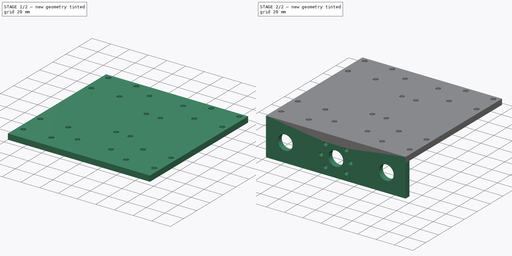
[diagram: build sequence overview — one tinted view per stage of 2, left to right]
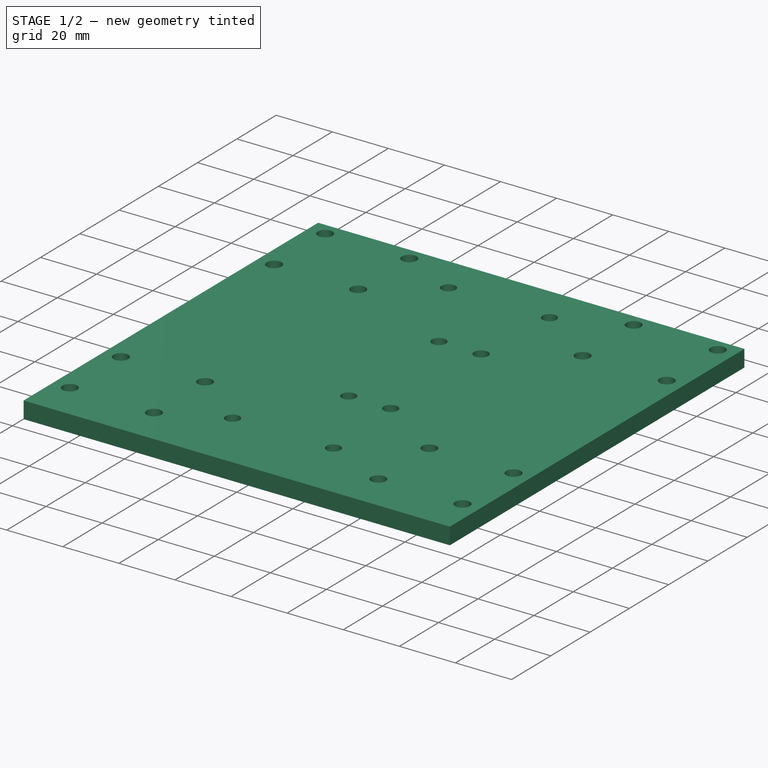
[diagram: stage 1 of 2 — iso view after this stage's code; geometry added in this stage tinted green]
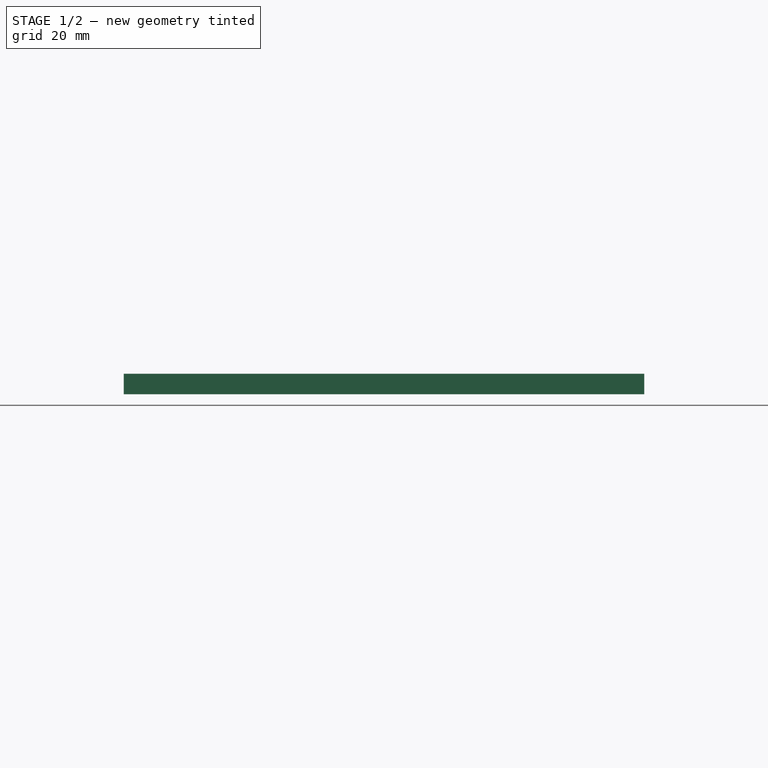
[diagram: stage 1 of 2 — front view after this stage's code; geometry added in this stage tinted green]
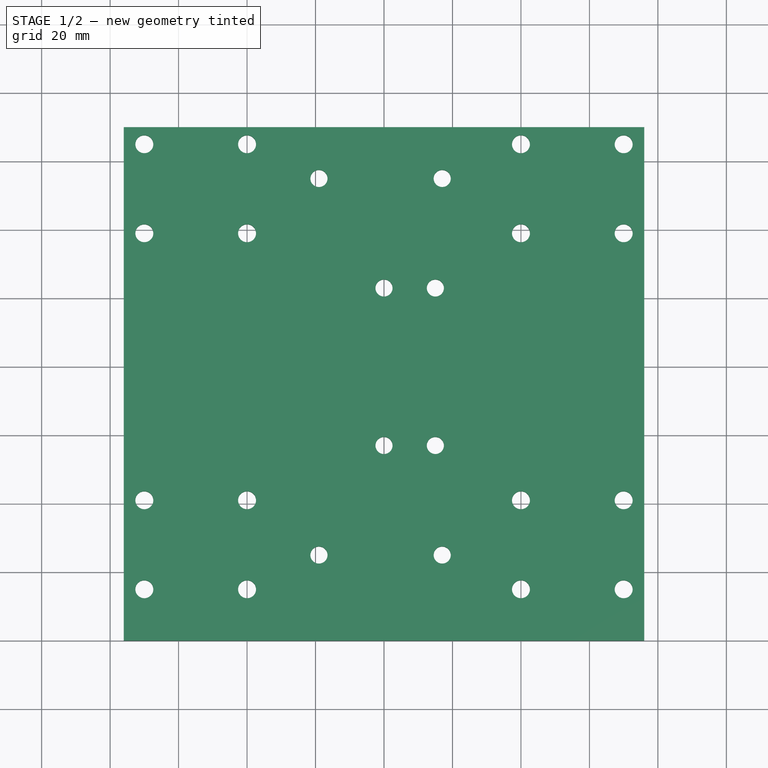
[diagram: stage 1 of 2 — top view after this stage's code; geometry added in this stage tinted green]
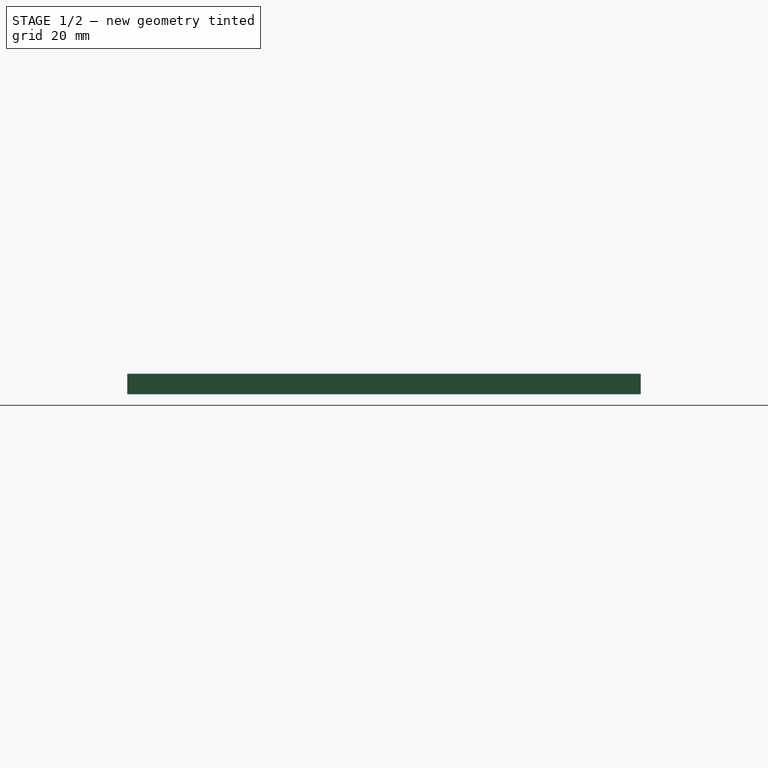
[diagram: stage 1 of 2 — right view after this stage's code; geometry added in this stage tinted green]
FCSTD DOCUMENT  (FreeCAD 0.15R4671 (Git))
Label: platform-x
License: All rights reserved
LicenseURL: http://en.wikipedia.org/wiki/All_rights_reserved
objects: Drawing::FeatureView×37, Drawing::FeatureViewPart×4, Sketcher::SketchObject×2, PartDesign::Pad×2, Drawing::FeaturePage×1
note: 6 computed .brp shape members not serialized (recipe doc carries the construction recipe); baked Part::Feature solids carry a one-line shape summary decoded from their .brp

FEATURE [Sketcher::SketchObject] Sketch  label="top-sketch"
  sketch-geometry (48):
    g0: LineSegment StartX=-76 StartY=70 StartZ=0 EndX=76 EndY=70 EndZ=0
    g1: LineSegment StartX=76 StartY=70 StartZ=0 EndX=76 EndY=-80 EndZ=0
    g2: LineSegment StartX=76 StartY=-80 StartZ=0 EndX=-76 EndY=-80 EndZ=0
    g3: LineSegment StartX=-76 StartY=-80 StartZ=0 EndX=-76 EndY=70 EndZ=0
    g4: LineSegment [constr] StartX=-70 StartY=65 StartZ=0 EndX=70 EndY=65 EndZ=0
    g5: LineSegment [constr] StartX=70 StartY=65 StartZ=0 EndX=70 EndY=-65 EndZ=0
    g6: LineSegment [constr] StartX=70 StartY=-65 StartZ=0 EndX=-70 EndY=-65 EndZ=0
    g7: LineSegment [constr] StartX=-70 StartY=-65 StartZ=0 EndX=-70 EndY=65 EndZ=0
    g8: LineSegment [constr] StartX=-40 StartY=65 StartZ=0 EndX=-40 EndY=-65 EndZ=0
    g9: LineSegment [constr] StartX=40 StartY=65 StartZ=0 EndX=40 EndY=-65 EndZ=0
    g10: LineSegment [constr] StartX=-70 StartY=-39 StartZ=0 EndX=-40 EndY=-39 EndZ=0
    g11: LineSegment [constr] StartX=40 StartY=-39 StartZ=0 EndX=70 EndY=-39 EndZ=0
    g12: LineSegment [constr] StartX=-70 StartY=39 StartZ=0 EndX=-40 EndY=39 EndZ=0
    g13: LineSegment [constr] StartX=0 StartY=23 StartZ=0 EndX=15 EndY=23 EndZ=0
    g14: LineSegment [constr] StartX=15 StartY=23 StartZ=0 EndX=15 EndY=-23 EndZ=0
    g15: LineSegment [constr] StartX=15 StartY=-23 StartZ=0 EndX=0 EndY=-23 EndZ=0
    g16: LineSegment [constr] StartX=0 StartY=-23 StartZ=0 EndX=0 EndY=23 EndZ=0
    g17: GeomPoint [constr] X=0 Y=65 Z=0
    g18: GeomPoint [constr] X=0 Y=-65 Z=0
    g19: LineSegment [constr] StartX=-19 StartY=55 StartZ=0 EndX=17 EndY=55 EndZ=0
    g20: LineSegment [constr] StartX=17 StartY=55 StartZ=0 EndX=17 EndY=-55 EndZ=0
    g21: LineSegment [constr] StartX=17 StartY=-55 StartZ=0 EndX=-19 EndY=-55 EndZ=0
    g22: LineSegment [constr] StartX=-19 StartY=-55 StartZ=0 EndX=-19 EndY=55 EndZ=0
    g23: Circle CenterX=-19 CenterY=55 CenterZ=0 NormalX=0 NormalY=0 NormalZ=1 Radius=2.5
    g24: Circle CenterX=17 CenterY=55 CenterZ=0 NormalX=0 NormalY=0 NormalZ=1 Radius=2.5
    g25: Circle CenterX=-19 CenterY=-55 CenterZ=0 NormalX=0 NormalY=0 NormalZ=1 Radius=2.5
    g26: Circle CenterX=17 CenterY=-55 CenterZ=0 NormalX=0 NormalY=0 NormalZ=1 Radius=2.5
    g27: Circle CenterX=-70 CenterY=65 CenterZ=0 NormalX=0 NormalY=0 NormalZ=1 Radius=2.625
    g28: Circle CenterX=-40 CenterY=65 CenterZ=0 NormalX=0 NormalY=0 NormalZ=1 Radius=2.625
    g29: Circle CenterX=-70 CenterY=39 CenterZ=0 NormalX=0 NormalY=0 NormalZ=1 Radius=2.625
    g30: Circle CenterX=-40 CenterY=39 CenterZ=0 NormalX=0 NormalY=0 NormalZ=1 Radius=2.625
    g31: Circle CenterX=-70 CenterY=-39 CenterZ=0 NormalX=0 NormalY=0 NormalZ=1 Radius=2.625
    g32: Circle CenterX=-40 CenterY=-39 CenterZ=0 NormalX=0 NormalY=0 NormalZ=1 Radius=2.625
    g33: Circle CenterX=-70 CenterY=-65 CenterZ=0 NormalX=0 NormalY=0 NormalZ=1 Radius=2.625
    g34: Circle CenterX=-40 CenterY=-65 CenterZ=0 NormalX=0 NormalY=0 NormalZ=1 Radius=2.625
    g35: Circle CenterX=40 CenterY=65 CenterZ=0 NormalX=0 NormalY=0 NormalZ=1 Radius=2.625
    g36: Circle CenterX=70 CenterY=65 CenterZ=0 NormalX=0 NormalY=0 NormalZ=1 Radius=2.625
    g37: Circle CenterX=40 CenterY=39 CenterZ=0 NormalX=0 NormalY=0 NormalZ=1 Radius=2.625
    g38: Circle CenterX=40 CenterY=-39 CenterZ=0 NormalX=0 NormalY=0 NormalZ=1 Radius=2.625
    g39: Circle CenterX=40 CenterY=-65 CenterZ=0 NormalX=0 NormalY=0 NormalZ=1 Radius=2.625
    g40: Circle CenterX=70 CenterY=-39 CenterZ=0 NormalX=0 NormalY=0 NormalZ=1 Radius=2.625
    g41: Circle CenterX=70 CenterY=-65 CenterZ=0 NormalX=0 NormalY=0 NormalZ=1 Radius=2.625
    g42: Circle CenterX=0 CenterY=23 CenterZ=0 NormalX=0 NormalY=0 NormalZ=1 Radius=2.5
    g43: Circle CenterX=15 CenterY=23 CenterZ=0 NormalX=0 NormalY=0 NormalZ=1 Radius=2.5
    g44: Circle CenterX=0 CenterY=-23 CenterZ=0 NormalX=0 NormalY=0 NormalZ=1 Radius=2.5
    g45: Circle CenterX=15 CenterY=-23 CenterZ=0 NormalX=0 NormalY=0 NormalZ=1 Radius=2.5
    g46: LineSegment [constr] StartX=40 StartY=39 StartZ=0 EndX=70 EndY=39 EndZ=0
    g47: Circle CenterX=70 CenterY=39 CenterZ=0 NormalX=0 NormalY=0 NormalZ=1 Radius=2.625
  constraints (121):
    c: Coincident(g0,g1)
    c: Coincident(g1,g2)
    c: Coincident(g2,g3)
    c: Coincident(g3,g0)
    c: Horizontal(g0)
    c: Horizontal(g2)
    c: Vertical(g1)
    c: Vertical(g3)
    c: Symmetric(g0,g0,g-2)
    c: DistanceX(g2,g1) = 152
    c: Coincident(g4,g5)
    c: Coincident(g5,g6)
    c: Coincident(g6,g7)
    c: Coincident(g7,g4)
    c: Horizontal(g4)
    c: Horizontal(g6)
    c: Vertical(g5)
    c: Vertical(g7)
    c: Symmetric(g4,g4,g-2)
    c: DistanceY(g0,g4) = -5
    c: DistanceX(g4,g0) = -6
    c: PointOnObject(g8,g4)
    c: PointOnObject(g8,g6)
    c: Vertical(g8)
    c: DistanceX(g6,g8) = 30
    c: PointOnObject(g9,g4)
    c: PointOnObject(g9,g6)
    c: Vertical(g9)
    c: DistanceX(g9,g5) = 30
    c: DistanceY(g6,g2) = -15
    c: PointOnObject(g10,g7)
    c: PointOnObject(g10,g8)
    c: Horizontal(g10)
    c: PointOnObject(g11,g9)
    c: PointOnObject(g11,g5)
    c: Horizontal(g11)
    c: PointOnObject(g11,g10)
    c: PointOnObject(g12,g7)
    c: PointOnObject(g12,g8)
    c: Horizontal(g12)
    c: PointOnObject(g37,g9)
    c: PointOnObject(g37,g12)
    c: DistanceY(g4,g12) = -26
    c: DistanceY(g10,g6) = -26
    c: Coincident(g13,g14)
    c: Coincident(g14,g15)
    c: Coincident(g15,g16)
    c: Coincident(g16,g13)
    c: Horizontal(g13)
    c: Horizontal(g15)
    c: Vertical(g14)
    c: Vertical(g16)
    c: PointOnObject(g13,g-2)
    c: Symmetric(g15,g13,g-1)
    c: DistanceX(g15,g14) = 15
    c: DistanceY(g13,g15) = -46
    c: PointOnObject(g17,g4)
    c: PointOnObject(g17,g-2)
    c: PointOnObject(g18,g6)
    c: PointOnObject(g18,g-2)
    c: Symmetric(g18,g17,g-1)
    c: Coincident(g19,g20)
    c: Coincident(g20,g21)
    c: Coincident(g21,g22)
    c: Coincident(g22,g19)
    c: Horizontal(g19)
    c: Horizontal(g21)
    c: Vertical(g20)
    c: Vertical(g22)
    c: Symmetric(g21,g19,g-1)
    c: DistanceX(g21,g20) = 36
    c: DistanceY(g19,g20) = -110
    c: Coincident(g23,g19)
    c: Coincident(g24,g19)
    c: Coincident(g25,g21)
    c: Coincident(g26,g20)
    c: Radius(g26) = 2.5
    c: Equal(g26,g25)
    c: Equal(g26,g23)
    c: Equal(g26,g24)
    c: Distance(g19,g0) = 15
    c: Coincident(g27,g4)
    c: Coincident(g28,g8)
    c: Coincident(g29,g12)
    c: Coincident(g30,g12)
    c: Coincident(g31,g10)
    c: Coincident(g32,g10)
    c: Coincident(g33,g6)
    c: Coincident(g34,g8)
    c: Coincident(g35,g9)
    c: Coincident(g36,g4)
    c: Coincident(g38,g11)
    c: Coincident(g39,g9)
    c: Coincident(g40,g11)
    c: Coincident(g41,g5)
    c: Radius(g27) = 2.625
    c: Equal(g27,g29)
    c: Equal(g27,g30)
    c: Equal(g27,g28)
    c: Equal(g27,g35)
    c: Equal(g27,g36)
    c: Equal(g27,g37)
    c: Equal(g27, g31-g34) x4
    c: Equal(g27,g38)
    c: Equal(g27,g40)
    c: Equal(g27,g39)
    c: Equal(g27,g41)
    c: Coincident(g42,g13)
    c: Coincident(g43,g13)
    c: Coincident(g44,g15)
    c: Coincident(g45,g14)
    c: Radius(g42) = 2.5
    c: Equal(g42,g43)
    c: Equal(g43,g45)
    c: Equal(g44,g45)
    c: Coincident(g46,g37)
    c: PointOnObject(g46,g5)
    c: Horizontal(g46)
    c: Coincident(g47,g46)
    c: Equal(g47,g37)
    c: DistanceX(g-1,g19) = -19
FEATURE [PartDesign::Pad] Pad  label="top"
  Length = 6
  Length2 = 100
  Sketch = -> Sketch
  Type = 0
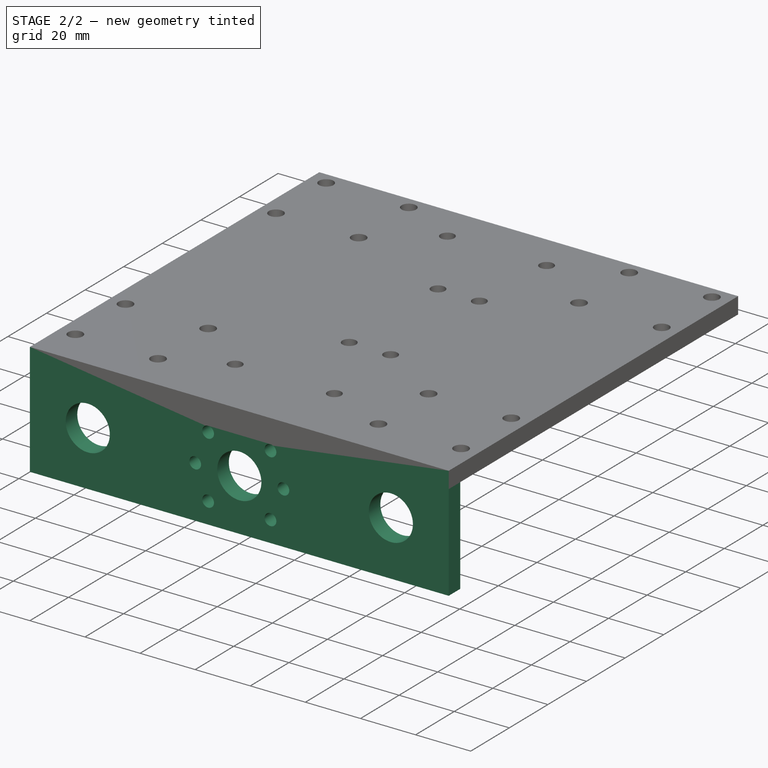
[diagram: stage 2 of 2 — iso view after this stage's code; geometry added in this stage tinted green]
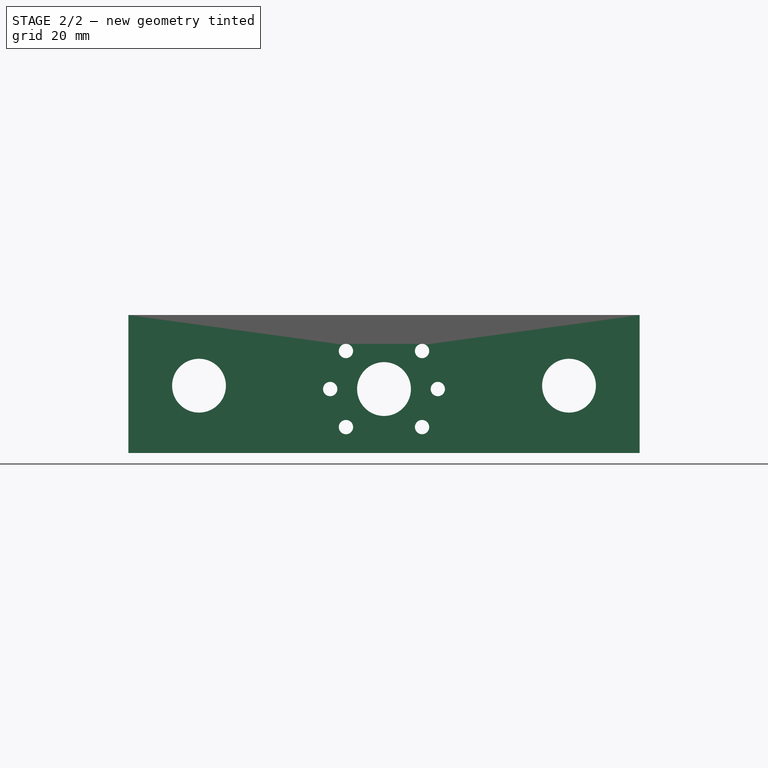
[diagram: stage 2 of 2 — front view after this stage's code; geometry added in this stage tinted green]
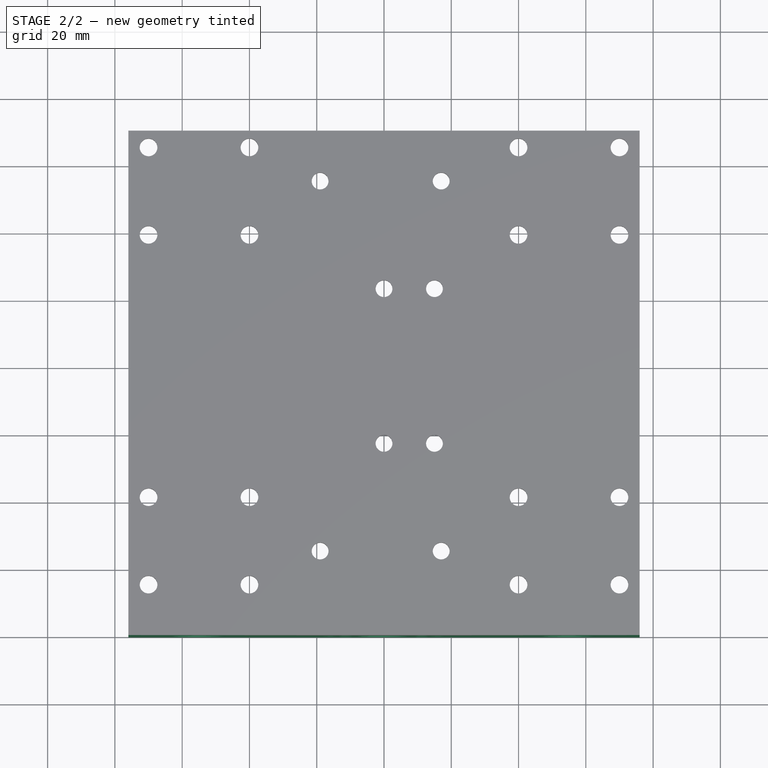
[diagram: stage 2 of 2 — top view after this stage's code; geometry added in this stage tinted green]
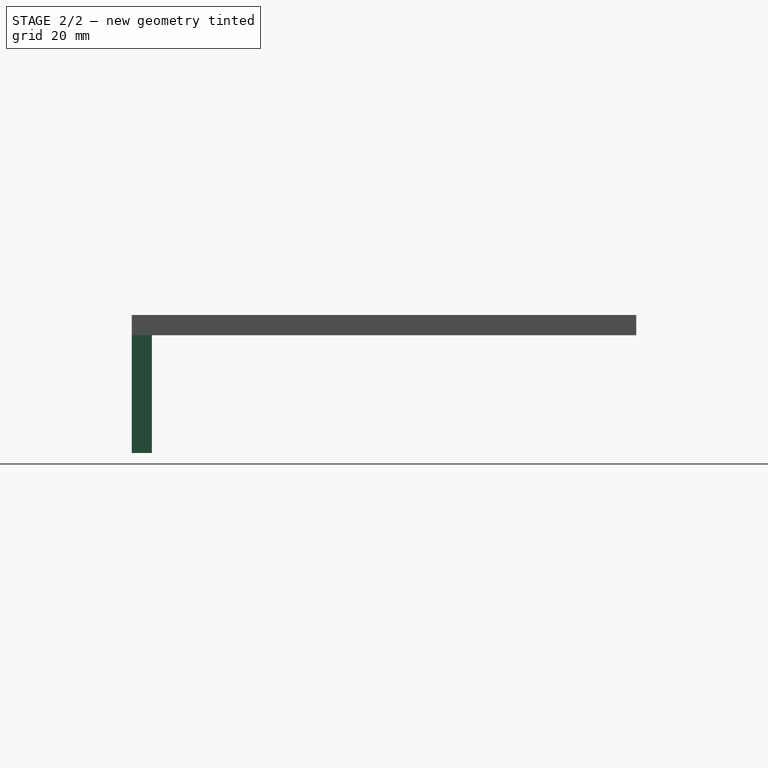
[diagram: stage 2 of 2 — right view after this stage's code; geometry added in this stage tinted green]
FEATURE [Sketcher::SketchObject] Sketch001  label="front-sketch"
  ExternalGeometry = -> [Pad]
  Placement = pos=(0,-80,0) rot=(1,0,0;1.5708rad)
  Support = -> Pad [Face3]
  sketch-geometry (18):
    g0: LineSegment StartX=-76 StartY=6 StartZ=0 EndX=76 EndY=6 EndZ=0
    g1: LineSegment StartX=76 StartY=6 StartZ=0 EndX=76 EndY=-35 EndZ=0
    g2: LineSegment StartX=76 StartY=-35 StartZ=0 EndX=-76 EndY=-35 EndZ=0
    g3: LineSegment StartX=-76 StartY=-35 StartZ=0 EndX=-76 EndY=6 EndZ=0
    g4: Circle CenterX=0 CenterY=-16 CenterZ=0 NormalX=0 NormalY=0 NormalZ=1 Radius=8
    g5: Circle [constr] CenterX=0 CenterY=-16 CenterZ=0 NormalX=0 NormalY=0 NormalZ=1 Radius=16
    g6: LineSegment [constr] StartX=-11.3137 StartY=-4.68629 StartZ=0 EndX=11.3137 EndY=-27.3137 EndZ=0
    g7: LineSegment [constr] StartX=11.3137 StartY=-4.68629 StartZ=0 EndX=-11.3137 EndY=-27.3137 EndZ=0
    g8: LineSegment [constr] StartX=-16 StartY=-16 StartZ=0 EndX=16 EndY=-16 EndZ=0
    g9: Circle CenterX=-11.3137 CenterY=-4.68629 CenterZ=0 NormalX=0 NormalY=0 NormalZ=1 Radius=2.125
    g10: Circle CenterX=-16 CenterY=-16 CenterZ=0 NormalX=0 NormalY=0 NormalZ=1 Radius=2.125
    g11: Circle CenterX=11.3137 CenterY=-4.68629 CenterZ=0 NormalX=0 NormalY=0 NormalZ=1 Radius=2.125
    g12: Circle CenterX=-11.3137 CenterY=-27.3137 CenterZ=0 NormalX=0 NormalY=0 NormalZ=1 Radius=2.125
    g13: Circle CenterX=11.3137 CenterY=-27.3137 CenterZ=0 NormalX=0 NormalY=0 NormalZ=1 Radius=2.125
    g14: LineSegment [constr] StartX=-76 StartY=-15 StartZ=0 EndX=76 EndY=-15 EndZ=0
    g15: Circle CenterX=16 CenterY=-16 CenterZ=0 NormalX=0 NormalY=0 NormalZ=1 Radius=2.125
    g16: Circle CenterX=-55 CenterY=-15 CenterZ=0 NormalX=0 NormalY=0 NormalZ=1 Radius=8
    g17: Circle CenterX=55 CenterY=-15 CenterZ=0 NormalX=0 NormalY=0 NormalZ=1 Radius=8
  constraints (50):
    c: Coincident(g0,g1)
    c: Coincident(g1,g2)
    c: Coincident(g2,g3)
    c: Coincident(g3,g0)
    c: Horizontal(g0)
    c: Horizontal(g2)
    c: Vertical(g1)
    c: Vertical(g3)
    c: Coincident(g0,g-3)
    c: Coincident(g0,g-3)
    c: PointOnObject(g4,g-2)
    c: Radius(g4) = 8
    c: Coincident(g5,g4)
    c: Radius(g5) = 16
    c: PointOnObject(g6,g5)
    c: PointOnObject(g6,g5)
    c: PointOnObject(g7,g5)
    c: PointOnObject(g7,g5)
    c: PointOnObject(g4,g7)
    c: PointOnObject(g4,g6)
    c: PointOnObject(g8,g5)
    c: PointOnObject(g8,g5)
    c: Horizontal(g8)
    c: PointOnObject(g4,g8)
    c: Angle(g6,g8) = 0.785398
    c: Angle(g8,g7) = 0.785398
    c: Coincident(g9,g6)
    c: Coincident(g10,g8)
    c: Coincident(g11,g7)
    c: Coincident(g12,g7)
    c: Coincident(g13,g6)
    c: PointOnObject(g14,g3)
    c: PointOnObject(g14,g1)
    c: Horizontal(g14)
    c: Coincident(g15,g8)
    c: Radius(g11) = 2.125
    c: Equal(g11,g13)
    c: Equal(g11,g15)
    c: Equal(g11,g12)
    c: Equal(g11,g10)
    c: Equal(g11,g9)
    c: DistanceY(g-1,g4) = -16
    c: DistanceY(g-1,g14) = -15
    c: PointOnObject(g16,g14)
    c: PointOnObject(g17,g14)
    c: Symmetric(g17,g16,g-2)
    c: DistanceX(g17,g16) = -110
    c: Radius(g16) = 8
    c: Equal(g16,g17)
    c: DistanceY(g-1,g1) = -35
FEATURE [PartDesign::Pad] Pad001  label="fron"
  Length = 6
  Length2 = 100
  Reversed = true
  Sketch = -> Sketch001
  Type = 0
FEATURE [Drawing::FeatureViewPart] Ortho  label="Ortho_0_0"
  Direction = (0,-1,0)
  HiddenWidth = 0.15
  LineWidth = 0.35
  Rotation = 90
  Scale = 0.75
  ShowHiddenLines = false
  ShowSmoothLines = false
  Tolerance = 0.05
  ViewResult = <g id="Ortho_0_0"\n   transform="rotate(90,80.5,161.5) translate(80.5,161.5) scale(0.75,0.75)"\n  >\n<g   stroke="rgb(0, 0, 0)"\n   stroke-width="0.466667"\n   stroke-linecap="butt"\n   stroke-linejoin="miter"\n   fill="none"\n   transform="scale(1,-1)"\n  >\n<path id= "1" d=" M 0 76 L 35 76 " />\n<path id= "2" d=" M 0 76 L -6 76 " />\n<path id= "3" d=" M 35 -76 L 0 -76 " />\n<path id= "4" d=" M 0 -76 L -6 -76 " />\n<path id= "5" d=" M -6 -76 L -6 76 " />\n<path id= "6" d=" M 35 76 L 35 -76 " />\n<circle cx ="16" cy ="0" r ="8" /><circle cx ="15" cy ="55" r ="8" /><circle cx ="15" cy ="-55" r ="8" /><circle cx ="16" cy ="16" r ="2.125" /><circle cx ="16" cy ="-16" r ="2.125" /><circle cx ="27.3137" cy ="-11.3137" r ="2.125" /><circle cx ="27.3137" cy ="11.3137" r ="2.125" /><circle cx ="4.68629" cy ="-11.3137" r ="2.125" /><circle cx ="4.68629" cy ="11.3137" r ="2.125" /></g>\n</g>
  Visible = true
  X = 80.5
  Y = 161.5
FEATURE [Drawing::FeatureViewPart] Ortho001  label="Ortho_0_1"
  Direction = (0,0,1)
  HiddenWidth = 0.15
  LineWidth = 0.35
  Rotation = 0
  Scale = 0.75
  ShowHiddenLines = false
  ShowSmoothLines = false
  Tolerance = 0.05
  ViewResult = <g id="Ortho_0_1"\n   transform="rotate(0,80.5,74.75) translate(80.5,74.75) scale(0.75,0.75)"\n  >\n<g   stroke="rgb(0, 0, 0)"\n   stroke-width="0.466667"\n   stroke-linecap="butt"\n   stroke-linejoin="miter"\n   fill="none"\n   transform="scale(1,-1)"\n  >\n<path d="M76,-72.75 L76,-72.89  L76,-73.0282  L76,-73.1628  L76,-73.2924  L76,-73.415  L76,-73.5294  L76,-73.6339  L76,-73.7273  L76,-73.8084  L76,-73.8762  L76,-73.9299  L76,-73.9687  L76,-73.9921  L76,-74 " /><path id= "2" d=" M 76 70 L 76 -74 " />\n<path id= "3" d=" M 76 -80 L 76 -74 " />\n<path id= "4" d=" M -76 70 L 76 70 " />\n<path id= "5" d=" M -76 -74 L -76 70 " />\n<path id= "6" d=" M -76 -80 L -76 -74 " />\n<circle cx ="-40" cy ="-65" r ="2.625" /><circle cx ="-40" cy ="-39" r ="2.625" /><circle cx ="-70" cy ="-39" r ="2.625" /><circle cx ="-70" cy ="-65" r ="2.625" /><circle cx ="-70" cy ="65" r ="2.625" /><circle cx ="-40" cy ="65" r ="2.625" /><circle cx ="-70" cy ="39" r ="2.625" /><circle cx ="-40" cy ="39" r ="2.625" /><circle cx ="-19" cy ="-55" r ="2.5" /><circle cx ="-19" cy ="55" r ="2.5" /><circle cx ="0" cy ="23" r ="2.5" /><circle cx ="0" cy ="-23" r ="2.5" /><circle cx ="70" cy ="-39" r ="2.625" /><circle cx ="40" cy ="-39" r ="2.625" /><circle cx ="40" cy ="65" r ="2.625" /><circle cx ="40" cy ="39" r ="2.625" /><circle cx ="70" cy ="65" r ="2.625" /><circle cx ="70" cy ="39" r ="2.625" /><circle cx ="70" cy ="-65" r ="2.625" /><circle cx ="40" cy ="-65" r ="2.625" /><circle cx ="17" cy ="55" r ="2.5" /><circle cx ="15" cy ="23" r ="2.5" /><circle cx ="17" cy ="-55" r ="2.5" /><circle cx ="15" cy ="-23" r ="2.5" /><path id= "31" d=" M -76 -80 L 76 -80 " />\n</g>\n</g>
  Visible = true
  X = 80.5
  Y = 74.75
FEATURE [Drawing::FeatureViewPart] Ortho002  label="Ortho_1_1"
  Direction = (0.57735,-0.57735,0.57735)
  HiddenWidth = 0.15
  LineWidth = 0.35
  Rotation = 60
  Scale = 0.5
  ShowHiddenLines = false
  ShowSmoothLines = false
  Tolerance = 0.05
  ViewResult = <blob: 8287 chars omitted>
  Visible = true
  X = 219.018
  Y = 71.5598
FEATURE [Drawing::FeatureViewPart] Ortho003  label="Ortho_1_0"
  Direction = (1,0,0)
  HiddenWidth = 0.15
  LineWidth = 0.35
  Rotation = -90
  Scale = 0.75
  ShowHiddenLines = false
  ShowSmoothLines = false
  Tolerance = 0.05
  ViewResult = <g id="Ortho_1_0"\n   transform="rotate(-90,221,161.5) translate(221,161.5) scale(0.75,0.75)"\n  >\n<g   stroke="rgb(0, 0, 0)"\n   stroke-width="0.466667"\n   stroke-linecap="butt"\n   stroke-linejoin="miter"\n   fill="none"\n   transform="scale(1,-1)"\n  >\n<path id= "1" d=" M 0 -70 L 0 72.75 " />\n<path d="M-2.22045e-16 72.75 A1.25 1.25 0 0 1 -1.25 74" /><path id= "3" d=" M 0 -70 L 6 -70 " />\n<path id= "4" d=" M -1.25 74 L -35 74 " />\n<path id= "5" d=" M 6 -70 L 6 74 " />\n<path id= "6" d=" M -35 80 L -35 74 " />\n<path id= "7" d=" M 6 80 L 6 74 " />\n<path id= "8" d=" M 0 80 L -35 80 " />\n<path id= "9" d=" M 0 80 L 6 80 " />\n</g>\n</g>
  Visible = true
  X = 221
  Y = 161.5
FEATURE [Drawing::FeatureView] dim001
  Rotation = 0
  ViewResult = <g>  <circle cx ="166.437500" cy ="162.437500" r="0.250000" stroke="none" fill="rgb(0,0,255)" /> \n<line x1="172.171812" y1="171.591131" x2="166.437500" y2="162.437500" style="stroke:rgb(0,0,255);stroke-width:0.50" />\n<polygon points="166.935203,163.231979 167.680409,166.305197 169.058738,166.621759 169.375299,165.243430" style="fill:rgb(0,0,255);stroke:rgb(0,0,255);stroke-width:0" />\n<line x1="172.171812" y1="171.591131" x2="189.882571" y2="171.591131" style="stroke:rgb(0,0,255);stroke-width:0.50" />\n<text x="181.027191" y="169.591131" font-family="inherit" font-size="3.6" fill="rgb(0,0,255)" text-anchor="middle"  >Rmax 1.25</text> </g>
  Visible = true
  X = 0
  Y = 0
FEATURE [Drawing::FeatureView] dim002
  Rotation = 0
  ViewResult = <g> \n  <line x1="161.000000" y1="189.750000" x2="161.000000" y2="200.609365" style="stroke:rgb(0,0,255);stroke-width:0.50" />\n<line x1="165.500000" y1="189.750000" x2="165.500000" y2="200.609365" style="stroke:rgb(0,0,255);stroke-width:0.50" />\n<line x1="161.000000" y1="199.609365" x2="165.500000" y2="199.609365" style="stroke:rgb(0,0,255);stroke-width:0.50" /> \n  <polygon points="165.500000,199.609365 168.500000,200.609365 169.500000,199.609365 168.500000,198.609365" style="fill:rgb(0,0,255);stroke:rgb(0,0,255);stroke-width:0" /><polygon points="161.000000,199.609365 158.000000,198.609365 157.000000,199.609365 158.000000,200.609365" style="fill:rgb(0,0,255);stroke:rgb(0,0,255);stroke-width:0" /> \n  <text x="163.250000" y="197.609365" font-family="inherit" font-size="3.6" fill="rgb(0,0,255)" text-anchor="middle" transform="rotate(0.000000 163.250000,197.609365)" >6</text> </g>
  Visible = true
  X = 0
  Y = 0
FEATURE [Drawing::FeatureView] dim003
  Rotation = 0
  ViewResult = <g> \n  <line x1="275.500000" y1="157.000000" x2="287.628362" y2="157.000000" style="stroke:rgb(0,0,255);stroke-width:0.50" />\n<line x1="275.500000" y1="161.500000" x2="287.628362" y2="161.500000" style="stroke:rgb(0,0,255);stroke-width:0.50" />\n<line x1="286.628362" y1="157.000000" x2="286.628362" y2="161.500000" style="stroke:rgb(0,0,255);stroke-width:0.50" /> \n  <polygon points="286.628362,161.500000 285.628362,164.500000 286.628362,165.500000 287.628362,164.500000" style="fill:rgb(0,0,255);stroke:rgb(0,0,255);stroke-width:0" /><polygon points="286.628362,157.000000 287.628362,154.000000 286.628362,153.000000 285.628362,154.000000" style="fill:rgb(0,0,255);stroke:rgb(0,0,255);stroke-width:0" /> \n  <text x="284.628362" y="159.250000" font-family="inherit" font-size="3.6" fill="rgb(0,0,255)" text-anchor="middle" transform="rotate(-90.000000 284.628362,159.250000)" >6</text> </g>
  Visible = true
  X = 0
  Y = 0
FEATURE [Drawing::FeatureView] dim005
  Rotation = 0
  ViewResult = <g> \n  <line x1="21.500000" y1="22.250000" x2="8.541557" y2="22.250000" style="stroke:rgb(0,0,255);stroke-width:0.50" />\n<line x1="21.500000" y1="134.750000" x2="8.541557" y2="134.750000" style="stroke:rgb(0,0,255);stroke-width:0.50" />\n<line x1="9.541557" y1="22.250000" x2="9.541557" y2="134.750000" style="stroke:rgb(0,0,255);stroke-width:0.50" /> \n  <polygon points="9.541557,134.750000 10.541557,131.750000 9.541557,130.750000 8.541557,131.750000" style="fill:rgb(0,0,255);stroke:rgb(0,0,255);stroke-width:0" /><polygon points="9.541557,22.250000 8.541557,25.250000 9.541557,26.250000 10.541557,25.250000" style="fill:rgb(0,0,255);stroke:rgb(0,0,255);stroke-width:0" /> \n  <text x="7.541557" y="78.500000" font-family="inherit" font-size="3.6" fill="rgb(0,0,255)" text-anchor="middle" transform="rotate(-90.000000 7.541557,78.500000)" >150</text> </g>
  Visible = true
  X = 0
  Y = 0
FEATURE [Drawing::FeatureView] dim006
  Rotation = 0
  ViewResult = <g> \n  <line x1="135.000000" y1="123.500000" x2="153.171815" y2="123.500000" style="stroke:rgb(0,0,255);stroke-width:0.50" />\n<line x1="139.500000" y1="134.750000" x2="153.171815" y2="134.750000" style="stroke:rgb(0,0,255);stroke-width:0.50" />\n<line x1="152.171815" y1="123.500000" x2="152.171815" y2="134.750000" style="stroke:rgb(0,0,255);stroke-width:0.50" /> \n  <polygon points="152.171815,134.750000 153.171815,131.750000 152.171815,130.750000 151.171815,131.750000" style="fill:rgb(0,0,255);stroke:rgb(0,0,255);stroke-width:0" /><polygon points="152.171815,123.500000 151.171815,126.500000 152.171815,127.500000 153.171815,126.500000" style="fill:rgb(0,0,255);stroke:rgb(0,0,255);stroke-width:0" /> \n  <text x="150.171815" y="129.125000" font-family="inherit" font-size="3.6" fill="rgb(0,0,255)" text-anchor="middle" transform="rotate(-90.000000 150.171815,129.125000)" >15</text> </g>
  Visible = true
  X = 0
  Y = 0
FEATURE [Drawing::FeatureView] dim008
  Rotation = 0
  ViewResult = <g> \n  <line x1="135.000000" y1="104.000000" x2="146.758235" y2="104.000000" style="stroke:rgb(0,0,255);stroke-width:0.50" />\n<line x1="135.000000" y1="123.500000" x2="146.758235" y2="123.500000" style="stroke:rgb(0,0,255);stroke-width:0.50" />\n<line x1="145.758235" y1="104.000000" x2="145.758235" y2="123.500000" style="stroke:rgb(0,0,255);stroke-width:0.50" /> \n  <polygon points="145.758235,123.500000 146.758235,120.500000 145.758235,119.500000 144.758235,120.500000" style="fill:rgb(0,0,255);stroke:rgb(0,0,255);stroke-width:0" /><polygon points="145.758235,104.000000 144.758235,107.000000 145.758235,108.000000 146.758235,107.000000" style="fill:rgb(0,0,255);stroke:rgb(0,0,255);stroke-width:0" /> \n  <text x="143.758235" y="113.750000" font-family="inherit" font-size="3.6" fill="rgb(0,0,255)" text-anchor="middle" transform="rotate(-90.000000 143.758235,113.750000)" >26</text> </g>
  Visible = true
  X = 0
  Y = 0
FEATURE [Drawing::FeatureView] dim007
  Rotation = 0
  ViewResult = <g> \n  <line x1="135.000000" y1="26.000000" x2="153.153624" y2="26.000000" style="stroke:rgb(0,0,255);stroke-width:0.50" />\n<line x1="135.000000" y1="123.500000" x2="153.153624" y2="123.500000" style="stroke:rgb(0,0,255);stroke-width:0.50" />\n<line x1="152.153624" y1="26.000000" x2="152.153624" y2="123.500000" style="stroke:rgb(0,0,255);stroke-width:0.50" /> \n  <polygon points="152.153624,123.500000 153.153624,120.500000 152.153624,119.500000 151.153624,120.500000" style="fill:rgb(0,0,255);stroke:rgb(0,0,255);stroke-width:0" /><polygon points="152.153624,26.000000 151.153624,29.000000 152.153624,30.000000 153.153624,29.000000" style="fill:rgb(0,0,255);stroke:rgb(0,0,255);stroke-width:0" /> \n  <text x="150.153624" y="74.750000" font-family="inherit" font-size="3.6" fill="rgb(0,0,255)" text-anchor="middle" transform="rotate(-90.000000 150.153624,74.750000)" >130</text> </g>
  Visible = true
  X = 0
  Y = 0
FEATURE [Drawing::FeatureView] dim009
  Rotation = 0
  ViewResult = <g> \n  <line x1="135.000000" y1="26.000000" x2="146.818945" y2="26.000000" style="stroke:rgb(0,0,255);stroke-width:0.50" />\n<line x1="135.000000" y1="45.500000" x2="146.818945" y2="45.500000" style="stroke:rgb(0,0,255);stroke-width:0.50" />\n<line x1="145.818945" y1="26.000000" x2="145.818945" y2="45.500000" style="stroke:rgb(0,0,255);stroke-width:0.50" /> \n  <polygon points="145.818945,45.500000 146.818945,42.500000 145.818945,41.500000 144.818945,42.500000" style="fill:rgb(0,0,255);stroke:rgb(0,0,255);stroke-width:0" /><polygon points="145.818945,26.000000 144.818945,29.000000 145.818945,30.000000 146.818945,29.000000" style="fill:rgb(0,0,255);stroke:rgb(0,0,255);stroke-width:0" /> \n  <text x="143.818945" y="35.750000" font-family="inherit" font-size="3.6" fill="rgb(0,0,255)" text-anchor="middle" transform="rotate(-90.000000 143.818945,35.750000)" >26</text> </g>
  Visible = true
  X = 0
  Y = 0
FEATURE [Drawing::FeatureView] centerLines001
  Rotation = 0
  ViewResult = <g transform="scale(0.750000,0.750000)" stroke="rgb(0,0,255)"  stroke-width="0.426667" > <path d="M 107.333333,29.666667 L 107.333333,25.666667 M 107.333333,23.000000 L 107.333333,21.881970 "/>\n<path d="M 107.333333,29.666667 L 107.333333,33.666667 M 107.333333,36.333333 L 107.333333,44.333333 M 107.333333,47.000000 L 107.333333,51.000000 M 107.333333,53.666667 L 107.333333,61.666667 M 107.333333,64.333333 L 107.333333,68.333333 M 107.333333,71.000000 L 107.333333,79.000000 M 107.333333,81.666667 L 107.333333,85.666667 M 107.333333,88.333333 L 107.333333,96.333333 M 107.333333,99.000000 L 107.333333,103.000000 M 107.333333,105.666667 L 107.333333,113.666667 M 107.333333,116.333333 L 107.333333,120.333333 M 107.333333,123.000000 L 107.333333,131.000000 M 107.333333,133.666667 L 107.333333,137.666667 M 107.333333,140.333333 L 107.333333,148.333333 M 107.333333,151.000000 L 107.333333,155.000000 M 107.333333,157.666667 L 107.333333,165.666667 M 107.333333,168.333333 L 107.333333,172.333333 M 107.333333,175.000000 L 107.333333,183.000000 M 107.333333,185.666667 L 107.333333,186.251186 "/> </g> 
  Visible = true
  X = 0
  Y = 0
FEATURE [Drawing::FeatureView] dim010
  Rotation = 0
  ViewResult = <g> \n  <line x1="64.250000" y1="33.500000" x2="59.487567" y2="33.500000" style="stroke:rgb(0,0,255);stroke-width:0.50" />\n<line x1="64.250000" y1="116.000000" x2="59.487567" y2="116.000000" style="stroke:rgb(0,0,255);stroke-width:0.50" />\n<line x1="60.487567" y1="33.500000" x2="60.487567" y2="116.000000" style="stroke:rgb(0,0,255);stroke-width:0.50" /> \n  <polygon points="60.487567,116.000000 61.487567,113.000000 60.487567,112.000000 59.487567,113.000000" style="fill:rgb(0,0,255);stroke:rgb(0,0,255);stroke-width:0" /><polygon points="60.487567,33.500000 59.487567,36.500000 60.487567,37.500000 61.487567,36.500000" style="fill:rgb(0,0,255);stroke:rgb(0,0,255);stroke-width:0" /> \n  <text x="58.487567" y="74.750000" font-family="inherit" font-size="3.6" fill="rgb(0,0,255)" text-anchor="middle" transform="rotate(-90.000000 58.487567,74.750000)" >110</text> </g>
  Visible = true
  X = 0
  Y = 0
FEATURE [Drawing::FeatureView] dimStack001
  Rotation = 0
  ViewResult = <g> <line x1="135.499999" y1="134.750000" x2="59.655588" y2="134.750000" style="stroke:rgb(0,0,255);stroke-width:0.50" />\n<line x1="64.249999" y1="116.000000" x2="59.655588" y2="116.000000" style="stroke:rgb(0,0,255);stroke-width:0.50" />\n<line x1="60.655588" y1="134.750000" x2="60.655588" y2="116.000000" style="stroke:rgb(0,0,255);stroke-width:0.50" />\n<polygon points="60.655588,134.750000 61.655588,131.750000 60.655588,130.750000 59.655588,131.750000" style="fill:rgb(0,0,255);stroke:rgb(0,0,255);stroke-width:0" />\n<polygon points="60.655588,116.000000 59.655588,119.000000 60.655588,120.000000 61.655588,119.000000" style="fill:rgb(0,0,255);stroke:rgb(0,0,255);stroke-width:0" />\n<text x="58.655588" y="125.375000" font-family="inherit" font-size="3.6" fill="rgb(0,0,255)" text-anchor="middle" transform="rotate(-90.000000 58.655588,125.375000)" >25</text> </g> 
  Visible = true
  X = 0
  Y = 0
FEATURE [Drawing::FeatureView] dim011
  Rotation = 0
  ViewResult = <g> \n  <line x1="78.500000" y1="92.000000" x2="74.272280" y2="92.000000" style="stroke:rgb(0,0,255);stroke-width:0.50" />\n<line x1="135.500000" y1="134.750000" x2="74.272280" y2="134.750000" style="stroke:rgb(0,0,255);stroke-width:0.50" />\n<line x1="75.272280" y1="92.000000" x2="75.272280" y2="134.750000" style="stroke:rgb(0,0,255);stroke-width:0.50" /> \n  <polygon points="75.272280,134.750000 76.272280,131.750000 75.272280,130.750000 74.272280,131.750000" style="fill:rgb(0,0,255);stroke:rgb(0,0,255);stroke-width:0" /><polygon points="75.272280,92.000000 74.272280,95.000000 75.272280,96.000000 76.272280,95.000000" style="fill:rgb(0,0,255);stroke:rgb(0,0,255);stroke-width:0" /> \n  <text x="73.272280" y="113.375000" font-family="inherit" font-size="3.6" fill="rgb(0,0,255)" text-anchor="middle" transform="rotate(-90.000000 73.272280,113.375000)" >57</text> </g>
  Visible = true
  X = 0
  Y = 0
FEATURE [Drawing::FeatureView] dim012
  Rotation = 0
  ViewResult = <g> \n  <line x1="78.500000" y1="57.500000" x2="74.259415" y2="57.500000" style="stroke:rgb(0,0,255);stroke-width:0.50" />\n<line x1="78.500000" y1="92.000000" x2="74.259415" y2="92.000000" style="stroke:rgb(0,0,255);stroke-width:0.50" />\n<line x1="75.259415" y1="57.500000" x2="75.259415" y2="92.000000" style="stroke:rgb(0,0,255);stroke-width:0.50" /> \n  <polygon points="75.259415,92.000000 76.259415,89.000000 75.259415,88.000000 74.259415,89.000000" style="fill:rgb(0,0,255);stroke:rgb(0,0,255);stroke-width:0" /><polygon points="75.259415,57.500000 74.259415,60.500000 75.259415,61.500000 76.259415,60.500000" style="fill:rgb(0,0,255);stroke:rgb(0,0,255);stroke-width:0" /> \n  <text x="73.259415" y="74.750000" font-family="inherit" font-size="3.6" fill="rgb(0,0,255)" text-anchor="middle" transform="rotate(-90.000000 73.259415,74.750000)" >46</text> </g>
  Visible = true
  X = 0
  Y = 0
FEATURE [Drawing::FeatureView] dim014
  Rotation = 0
  ViewResult = <g> \n  <line x1="80.500000" y1="55.500000" x2="80.500000" y2="45.538643" style="stroke:rgb(0,0,255);stroke-width:0.50" />\n<line x1="91.750000" y1="55.500000" x2="91.750000" y2="45.538643" style="stroke:rgb(0,0,255);stroke-width:0.50" />\n<line x1="80.500000" y1="46.538643" x2="91.750000" y2="46.538643" style="stroke:rgb(0,0,255);stroke-width:0.50" /> \n  <polygon points="91.750000,46.538643 88.750000,45.538643 87.750000,46.538643 88.750000,47.538643" style="fill:rgb(0,0,255);stroke:rgb(0,0,255);stroke-width:0" /><polygon points="80.500000,46.538643 83.500000,47.538643 84.500000,46.538643 83.500000,45.538643" style="fill:rgb(0,0,255);stroke:rgb(0,0,255);stroke-width:0" /> \n  <text x="86.125000" y="44.538643" font-family="inherit" font-size="3.6" fill="rgb(0,0,255)" text-anchor="middle" transform="rotate(0.000000 86.125000,44.538643)" >15</text> </g>
  Visible = true
  X = 0
  Y = 0
FEATURE [Drawing::FeatureView] dim004
  Rotation = 0
  ViewResult = <g> \n  <line x1="23.500000" y1="20.250000" x2="23.500000" y2="6.325246" style="stroke:rgb(0,0,255);stroke-width:0.50" />\n<line x1="137.500000" y1="20.250000" x2="137.500000" y2="6.325246" style="stroke:rgb(0,0,255);stroke-width:0.50" />\n<line x1="23.500000" y1="7.325246" x2="137.500000" y2="7.325246" style="stroke:rgb(0,0,255);stroke-width:0.50" /> \n  <polygon points="137.500000,7.325246 134.500000,6.325246 133.500000,7.325246 134.500000,8.325246" style="fill:rgb(0,0,255);stroke:rgb(0,0,255);stroke-width:0" /><polygon points="23.500000,7.325246 26.500000,8.325246 27.500000,7.325246 26.500000,6.325246" style="fill:rgb(0,0,255);stroke:rgb(0,0,255);stroke-width:0" /> \n  <text x="80.500000" y="5.325246" font-family="inherit" font-size="3.6" fill="rgb(0,0,255)" text-anchor="middle" transform="rotate(0.000000 80.500000,5.325246)" >152</text> </g>
  Visible = true
  X = 0
  Y = 0
FEATURE [Drawing::FeatureView] dim013
  Rotation = 0
  ViewResult = <g> \n  <line x1="93.250000" y1="31.500000" x2="93.250000" y2="27.402285" style="stroke:rgb(0,0,255);stroke-width:0.50" />\n<line x1="80.500000" y1="55.500000" x2="80.500000" y2="27.402285" style="stroke:rgb(0,0,255);stroke-width:0.50" />\n<line x1="93.250000" y1="28.402285" x2="80.500000" y2="28.402285" style="stroke:rgb(0,0,255);stroke-width:0.50" /> \n  <polygon points="80.500000,28.402285 83.500000,29.402285 84.500000,28.402285 83.500000,27.402285" style="fill:rgb(0,0,255);stroke:rgb(0,0,255);stroke-width:0" /><polygon points="93.250000,28.402285 90.250000,27.402285 89.250000,28.402285 90.250000,29.402285" style="fill:rgb(0,0,255);stroke:rgb(0,0,255);stroke-width:0" /> \n  <text x="86.875000" y="26.402285" font-family="inherit" font-size="3.6" fill="rgb(0,0,255)" text-anchor="middle" transform="rotate(0.000000 86.875000,26.402285)" >17</text> </g>
  Visible = true
  X = 0
  Y = 0
FEATURE [Drawing::FeatureView] dim015
  Rotation = 0
  ViewResult = <g> \n  <line x1="80.500000" y1="55.500000" x2="80.500000" y2="27.402285" style="stroke:rgb(0,0,255);stroke-width:0.50" />\n<line x1="66.250000" y1="31.500000" x2="66.250000" y2="27.402285" style="stroke:rgb(0,0,255);stroke-width:0.50" />\n<line x1="80.500000" y1="28.402285" x2="66.250000" y2="28.402285" style="stroke:rgb(0,0,255);stroke-width:0.50" /> \n  <polygon points="66.250000,28.402285 69.250000,29.402285 70.250000,28.402285 69.250000,27.402285" style="fill:rgb(0,0,255);stroke:rgb(0,0,255);stroke-width:0" /><polygon points="80.500000,28.402285 77.500000,27.402285 76.500000,28.402285 77.500000,29.402285" style="fill:rgb(0,0,255);stroke:rgb(0,0,255);stroke-width:0" /> \n  <text x="73.375000" y="26.402285" font-family="inherit" font-size="3.6" fill="rgb(0,0,255)" text-anchor="middle" transform="rotate(0.000000 73.375000,26.402285)" >19</text> </g>
  Visible = true
  X = 0
  Y = 0
FEATURE [Drawing::FeatureView] dim017
  Rotation = 0
  ViewResult = <g> \n  <line x1="28.000000" y1="125.500000" x2="28.000000" y2="141.480620" style="stroke:rgb(0,0,255);stroke-width:0.50" />\n<line x1="50.500000" y1="125.500000" x2="50.500000" y2="141.480620" style="stroke:rgb(0,0,255);stroke-width:0.50" />\n<line x1="28.000000" y1="140.480620" x2="50.500000" y2="140.480620" style="stroke:rgb(0,0,255);stroke-width:0.50" /> \n  <polygon points="50.500000,140.480620 47.500000,139.480620 46.500000,140.480620 47.500000,141.480620" style="fill:rgb(0,0,255);stroke:rgb(0,0,255);stroke-width:0" /><polygon points="28.000000,140.480620 31.000000,141.480620 32.000000,140.480620 31.000000,139.480620" style="fill:rgb(0,0,255);stroke:rgb(0,0,255);stroke-width:0" /> \n  <text x="39.250000" y="138.480620" font-family="inherit" font-size="3.6" fill="rgb(0,0,255)" text-anchor="middle" transform="rotate(0.000000 39.250000,138.480620)" >30</text> </g>
  Visible = true
  X = 0
  Y = 0
FEATURE [Drawing::FeatureView] dim018
  Rotation = 0
  ViewResult = <g> \n  <line x1="110.500000" y1="125.500000" x2="110.500000" y2="141.951636" style="stroke:rgb(0,0,255);stroke-width:0.50" />\n<line x1="133.000000" y1="125.500000" x2="133.000000" y2="141.951636" style="stroke:rgb(0,0,255);stroke-width:0.50" />\n<line x1="110.500000" y1="140.951636" x2="133.000000" y2="140.951636" style="stroke:rgb(0,0,255);stroke-width:0.50" /> \n  <polygon points="133.000000,140.951636 130.000000,139.951636 129.000000,140.951636 130.000000,141.951636" style="fill:rgb(0,0,255);stroke:rgb(0,0,255);stroke-width:0" /><polygon points="110.500000,140.951636 113.500000,141.951636 114.500000,140.951636 113.500000,139.951636" style="fill:rgb(0,0,255);stroke:rgb(0,0,255);stroke-width:0" /> \n  <text x="121.750000" y="138.951636" font-family="inherit" font-size="3.6" fill="rgb(0,0,255)" text-anchor="middle" transform="rotate(0.000000 121.750000,138.951636)" >30</text> </g>
  Visible = true
  X = 0
  Y = 0
FEATURE [Drawing::FeatureView] dim020
  Rotation = 0
  ViewResult = <g>  <circle cx ="93.250000" cy ="116.000000" r="0.250000" stroke="none" fill="rgb(0,0,255)" /> \n<line x1="95.802082" y1="107.357975" x2="92.718964" y2="117.798229" style="stroke:rgb(0,0,255);stroke-width:0.50" />\n<polygon points="93.781036,114.201771 95.589749,111.607825 94.913913,110.365551 93.671638,111.041387" style="fill:rgb(0,0,255);stroke:rgb(0,0,255);stroke-width:0" />\n<polygon points="92.718964,117.798229 90.910251,120.392175 91.586087,121.634449 92.828362,120.958613" style="fill:rgb(0,0,255);stroke:rgb(0,0,255);stroke-width:0" />\n<line x1="95.802082" y1="107.357975" x2="106.239663" y2="107.357975" style="stroke:rgb(0,0,255);stroke-width:0.50" />\n<text x="101.020872" y="105.357975" font-family="inherit" font-size="3.6" fill="rgb(0,0,255)" text-anchor="middle"  >4 x Ø5</text> </g>
  Visible = true
  X = 0
  Y = 0
FEATURE [Drawing::FeatureView] dim021
  Rotation = 0
  ViewResult = <g>  <circle cx ="28.000000" cy ="104.000000" r="0.250000" stroke="none" fill="rgb(0,0,255)" /> \n<line x1="31.312743" y1="93.565457" x2="27.404266" y2="105.876454" style="stroke:rgb(0,0,255);stroke-width:0.50" />\n<polygon points="28.595734,102.123546 30.456637,99.566783 29.806113,98.311069 28.550399,98.961594" style="fill:rgb(0,0,255);stroke:rgb(0,0,255);stroke-width:0" />\n<polygon points="27.404266,105.876454 25.543363,108.433217 26.193887,109.688931 27.449601,109.038406" style="fill:rgb(0,0,255);stroke:rgb(0,0,255);stroke-width:0" />\n<line x1="31.312743" y1="93.565457" x2="47.714655" y2="93.565457" style="stroke:rgb(0,0,255);stroke-width:0.50" />\n<text x="39.513699" y="91.565457" font-family="inherit" font-size="3.6" fill="rgb(0,0,255)" text-anchor="middle"  >16 x Ø5.25</text> </g>
  Visible = true
  X = 0
  Y = 0
FEATURE [Drawing::FeatureView] dim019
  Rotation = 0
  ViewResult = <g> \n  <line x1="28.000000" y1="125.500000" x2="28.000000" y2="147.001876" style="stroke:rgb(0,0,255);stroke-width:0.50" />\n<line x1="133.000000" y1="125.500000" x2="133.000000" y2="147.001876" style="stroke:rgb(0,0,255);stroke-width:0.50" />\n<line x1="28.000000" y1="146.001876" x2="133.000000" y2="146.001876" style="stroke:rgb(0,0,255);stroke-width:0.50" /> \n  <polygon points="133.000000,146.001876 130.000000,145.001876 129.000000,146.001876 130.000000,147.001876" style="fill:rgb(0,0,255);stroke:rgb(0,0,255);stroke-width:0" /><polygon points="28.000000,146.001876 31.000000,147.001876 32.000000,146.001876 31.000000,145.001876" style="fill:rgb(0,0,255);stroke:rgb(0,0,255);stroke-width:0" /> \n  <text x="80.500000" y="144.001876" font-family="inherit" font-size="3.6" fill="rgb(0,0,255)" text-anchor="middle" transform="rotate(0.000000 80.500000,144.001876)" >140</text> </g>
  Visible = true
  X = 0
  Y = 0
FEATURE [Drawing::FeatureView] dim025
  Rotation = 0
  ViewResult = <g> \n  <line x1="23.500000" y1="136.750000" x2="23.500000" y2="147.278116" style="stroke:rgb(0,0,255);stroke-width:0.50" />\n<line x1="28.000000" y1="125.500000" x2="28.000000" y2="147.278116" style="stroke:rgb(0,0,255);stroke-width:0.50" />\n<line x1="23.500000" y1="146.278116" x2="28.000000" y2="146.278116" style="stroke:rgb(0,0,255);stroke-width:0.50" /> \n  <polygon points="28.000000,146.278116 31.000000,147.278116 32.000000,146.278116 31.000000,145.278116" style="fill:rgb(0,0,255);stroke:rgb(0,0,255);stroke-width:0" /><polygon points="23.500000,146.278116 20.500000,145.278116 19.500000,146.278116 20.500000,147.278116" style="fill:rgb(0,0,255);stroke:rgb(0,0,255);stroke-width:0" /> \n  <text x="25.750000" y="144.278116" font-family="inherit" font-size="3.6" fill="rgb(0,0,255)" text-anchor="middle" transform="rotate(0.000000 25.750000,144.278116)" >6</text> </g>
  Visible = true
  X = 0
  Y = 0
FEATURE [Drawing::FeatureView] dim026
  Rotation = 0
  ViewResult = <g> \n  <line x1="39.250000" y1="174.750000" x2="39.250000" y2="199.049698" style="stroke:rgb(0,0,255);stroke-width:0.50" />\n<line x1="121.750000" y1="174.750000" x2="121.750000" y2="199.049698" style="stroke:rgb(0,0,255);stroke-width:0.50" />\n<line x1="39.250000" y1="198.049698" x2="121.750000" y2="198.049698" style="stroke:rgb(0,0,255);stroke-width:0.50" /> \n  <polygon points="121.750000,198.049698 118.750000,197.049698 117.750000,198.049698 118.750000,199.049698" style="fill:rgb(0,0,255);stroke:rgb(0,0,255);stroke-width:0" /><polygon points="39.250000,198.049698 42.250000,199.049698 43.250000,198.049698 42.250000,197.049698" style="fill:rgb(0,0,255);stroke:rgb(0,0,255);stroke-width:0" /> \n  <text x="80.500000" y="196.049698" font-family="inherit" font-size="3.6" fill="rgb(0,0,255)" text-anchor="middle" transform="rotate(0.000000 80.500000,196.049698)" >110</text> </g>
  Visible = true
  X = 0
  Y = 0
FEATURE [Drawing::FeatureView] dim027
  Rotation = 0
  ViewResult = <g> \n  <line x1="39.250000" y1="174.750000" x2="39.250000" y2="199.049698" style="stroke:rgb(0,0,255);stroke-width:0.50" />\n<line x1="23.500000" y1="189.750000" x2="23.500000" y2="199.049698" style="stroke:rgb(0,0,255);stroke-width:0.50" />\n<line x1="39.250000" y1="198.049698" x2="23.500000" y2="198.049698" style="stroke:rgb(0,0,255);stroke-width:0.50" /> \n  <polygon points="23.500000,198.049698 26.500000,199.049698 27.500000,198.049698 26.500000,197.049698" style="fill:rgb(0,0,255);stroke:rgb(0,0,255);stroke-width:0" /><polygon points="39.250000,198.049698 36.250000,197.049698 35.250000,198.049698 36.250000,199.049698" style="fill:rgb(0,0,255);stroke:rgb(0,0,255);stroke-width:0" /> \n  <text x="31.375000" y="196.049698" font-family="inherit" font-size="3.6" fill="rgb(0,0,255)" text-anchor="middle" transform="rotate(0.000000 31.375000,196.049698)" >21</text> </g>
  Visible = true
  X = 0
  Y = 0
FEATURE [Drawing::FeatureView] centerLines002
  Rotation = 0
  ViewResult = <g transform="scale(0.750000,0.750000)" stroke="rgb(0,0,255)"  stroke-width="0.426667" > <path d="M 107.333333,231.333333 L 107.333333,227.333333 M 107.333333,224.666667 L 107.333333,216.666667 M 107.333333,214.000000 L 107.333333,210.000000 M 107.333333,207.333333 L 107.333333,205.536113 "/>\n<path d="M 107.333333,231.333333 L 105.263528,231.333333 "/>\n<path d="M 107.333333,231.333333 L 107.333333,235.333333 M 107.333333,238.000000 L 107.333333,246.000000 "/>\n<path d="M 107.333333,231.333333 L 111.333333,231.333333 M 114.000000,231.333333 L 122.000000,231.333333 M 124.666667,231.333333 L 128.666667,231.333333 M 131.333333,231.333333 L 131.579410,231.333333 "/> </g> 
  Visible = true
  X = 0
  Y = 0
FEATURE [Drawing::FeatureView] dim028
  Rotation = 0
  ViewResult = <g> <line x1="66.500000" y1="173.500000" x2="62.276146" y2="173.500000" style="stroke:rgb(0,0,255);stroke-width:0.50" />\n<line x1="70.600512" y1="163.600503" x2="67.613795" y2="160.613783" style="stroke:rgb(0,0,255);stroke-width:0.50" />\n<path d = "M 63.276146 173.500000 A 17.223854 17.223854 0 0 1 68.320901 161.320891" style="stroke:rgb(0,0,255);stroke-width:0.50;fill:none" />\n<polygon points="63.276146,173.500000 64.276146,170.500000 63.276146,169.500000 62.276146,170.500000" style="fill:rgb(0,0,255);stroke:rgb(0,0,255);stroke-width:0" />\n<polygon points="68.320901,161.320891 65.492474,162.735103 65.492473,164.149316 66.906687,164.149317" style="fill:rgb(0,0,255);stroke:rgb(0,0,255);stroke-width:0" />\n<text x="55.632159" y="166.896477" font-family="inherit" font-size="3.6" fill="rgb(0,0,255)" text-anchor="-2.79315910543"  >45.0°</text> </g>
  Visible = true
  X = 0
  Y = 0
FEATURE [Drawing::FeatureView] dim029
  Rotation = 0
  ViewResult = <g> <line x1="66.500000" y1="173.500000" x2="62.420090" y2="173.500000" style="stroke:rgb(0,0,255);stroke-width:0.50" />\n<line x1="70.600511" y1="183.399489" x2="67.715573" y2="186.284427" style="stroke:rgb(0,0,255);stroke-width:0.50" />\n<path d = "M 63.420090 173.500000 A 17.079910 17.079910 0 0 0 68.422680 185.577320" style="stroke:rgb(0,0,255);stroke-width:0.50;fill:none" />\n<polygon points="63.420090,173.500000 62.420090,176.500000 63.420090,177.500000 64.420090,176.500000" style="fill:rgb(0,0,255);stroke:rgb(0,0,255);stroke-width:0" />\n<polygon points="68.422680,185.577320 67.008466,182.748893 65.594253,182.748893 65.594253,184.163107" style="fill:rgb(0,0,255);stroke:rgb(0,0,255);stroke-width:0" />\n<text x="55.158073" y="183.024515" font-family="inherit" font-size="3.6" fill="rgb(0,0,255)" text-anchor="2.78208557401"  >45.0°</text> </g>
  Visible = true
  X = 0
  Y = 0
FEATURE [Drawing::FeatureView] dim016
  Rotation = 0
  ViewResult = <g> \n  <line x1="23.500000" y1="20.250000" x2="23.500000" y2="13.605493" style="stroke:rgb(0,0,255);stroke-width:0.50" />\n<line x1="80.500000" y1="14.411478" x2="80.500000" y2="13.605493" style="stroke:rgb(0,0,255);stroke-width:0.50" />\n<line x1="23.500000" y1="14.605493" x2="80.500000" y2="14.605493" style="stroke:rgb(0,0,255);stroke-width:0.50" /> \n  <polygon points="80.500000,14.605493 77.500000,13.605493 76.500000,14.605493 77.500000,15.605493" style="fill:rgb(0,0,255);stroke:rgb(0,0,255);stroke-width:0" /><polygon points="23.500000,14.605493 26.500000,15.605493 27.500000,14.605493 26.500000,13.605493" style="fill:rgb(0,0,255);stroke:rgb(0,0,255);stroke-width:0" /> \n  <text x="52.000000" y="12.605493" font-family="inherit" font-size="3.6" fill="rgb(0,0,255)" text-anchor="middle" transform="rotate(0.000000 52.000000,12.605493)" >76</text> </g>
  Visible = true
  X = 0
  Y = 0
FEATURE [Drawing::FeatureView] dim030
  Rotation = 0
  ViewResult = <g> \n  <line x1="23.500000" y1="155.000000" x2="23.500000" y2="151.619197" style="stroke:rgb(0,0,255);stroke-width:0.50" />\n<line x1="80.500000" y1="152.152085" x2="80.500000" y2="151.619197" style="stroke:rgb(0,0,255);stroke-width:0.50" />\n<line x1="23.500000" y1="152.619197" x2="80.500000" y2="152.619197" style="stroke:rgb(0,0,255);stroke-width:0.50" /> \n  <polygon points="80.500000,152.619197 77.500000,151.619197 76.500000,152.619197 77.500000,153.619197" style="fill:rgb(0,0,255);stroke:rgb(0,0,255);stroke-width:0" /><polygon points="23.500000,152.619197 26.500000,153.619197 27.500000,152.619197 26.500000,151.619197" style="fill:rgb(0,0,255);stroke:rgb(0,0,255);stroke-width:0" /> \n  <text x="52.000000" y="150.619197" font-family="inherit" font-size="3.6" fill="rgb(0,0,255)" text-anchor="middle" transform="rotate(0.000000 52.000000,150.619197)" >76</text> </g>
  Visible = true
  X = 0
  Y = 0
FEATURE [Drawing::FeatureView] dim031
  Rotation = 0
  ViewResult = <g> \n  <line x1="90.399489" y1="180.571062" x2="106.109371" y2="164.861187" style="stroke:rgb(0,0,255);stroke-width:0.50" />\n<line x1="73.428939" y1="163.600504" x2="89.138821" y2="147.890629" style="stroke:rgb(0,0,255);stroke-width:0.50" />\n<line x1="105.402264" y1="165.568294" x2="88.431714" y2="148.597736" style="stroke:rgb(0,0,255);stroke-width:0.50" /> \n  <polygon points="88.431714,148.597736 89.845927,151.426163 91.260140,151.426164 91.260141,150.011950" style="fill:rgb(0,0,255);stroke:rgb(0,0,255);stroke-width:0" /><polygon points="105.402264,165.568294 103.988051,162.739866 102.573837,162.739866 102.573837,164.154079" style="fill:rgb(0,0,255);stroke:rgb(0,0,255);stroke-width:0" /> \n  <text x="100.912470" y="153.362679" font-family="inherit" font-size="3.6" fill="rgb(0,0,255)" text-anchor="middle" transform="rotate(-45.000000 100.912470,153.362679)" >Ø32</text> </g>
  Visible = true
  X = 0
  Y = 0
FEATURE [Drawing::FeatureView] dim032
  Rotation = 0
  ViewResult = <g>  <circle cx ="39.250000" cy ="172.750000" r="0.250000" stroke="none" fill="rgb(0,0,255)" /> \n<line x1="42.011306" y1="165.091303" x2="37.214959" y2="178.394343" style="stroke:rgb(0,0,255);stroke-width:0.50" />\n<polygon points="41.285041,167.105657 39.326796,169.588655 39.928347,170.868552 41.208244,170.267002" style="fill:rgb(0,0,255);stroke:rgb(0,0,255);stroke-width:0" />\n<polygon points="37.214959,178.394343 39.173204,175.911345 38.571653,174.631448 37.291756,175.232998" style="fill:rgb(0,0,255);stroke:rgb(0,0,255);stroke-width:0" />\n<line x1="42.011306" y1="165.091303" x2="50.708959" y2="165.091303" style="stroke:rgb(0,0,255);stroke-width:0.50" />\n<text x="46.360132" y="163.091303" font-family="inherit" font-size="3.6" fill="rgb(0,0,255)" text-anchor="middle"  >2 x Ø16</text> </g>
  Visible = true
  X = 0
  Y = 0
FEATURE [Drawing::FeatureView] dim033
  Rotation = 0
  ViewResult = <g>  <circle cx ="80.500000" cy ="173.500000" r="0.250000" stroke="none" fill="rgb(0,0,255)" /> \n<line x1="84.679038" y1="162.301490" x2="78.402241" y2="179.121335" style="stroke:rgb(0,0,255);stroke-width:0.50" />\n<polygon points="82.597759,167.878665 80.611990,170.339706 81.199253,171.626222 82.485769,171.038959" style="fill:rgb(0,0,255);stroke:rgb(0,0,255);stroke-width:0" />\n<polygon points="78.402241,179.121335 80.388010,176.660294 79.800747,175.373778 78.514231,175.961041" style="fill:rgb(0,0,255);stroke:rgb(0,0,255);stroke-width:0" />\n<line x1="84.679038" y1="162.301490" x2="94.361331" y2="162.301490" style="stroke:rgb(0,0,255);stroke-width:0.50" />\n<text x="89.520185" y="160.301490" font-family="inherit" font-size="3.6" fill="rgb(0,0,255)" text-anchor="middle" transform="rotate(0.000000 89.520185,160.301490)" >Ø16</text> </g>
  Visible = true
  X = 0
  Y = 0
FEATURE [Drawing::FeatureView] dim034
  Rotation = 0
  ViewResult = <g>  <circle cx ="88.985275" cy ="181.985275" r="0.250000" stroke="none" fill="rgb(0,0,255)" /> \n<line x1="93.704905" y1="186.589276" x2="87.844435" y2="180.872385" style="stroke:rgb(0,0,255);stroke-width:0.50" />\n<polygon points="90.126115,183.098165 91.575294,185.908837 92.989399,185.891300 92.971862,184.477195" style="fill:rgb(0,0,255);stroke:rgb(0,0,255);stroke-width:0" />\n<polygon points="87.844435,180.872385 86.395256,178.061713 84.981151,178.079250 84.998688,179.493355" style="fill:rgb(0,0,255);stroke:rgb(0,0,255);stroke-width:0" />\n<line x1="93.704905" y1="186.589276" x2="110.936104" y2="186.589276" style="stroke:rgb(0,0,255);stroke-width:0.50" />\n<text x="102.320505" y="184.589276" font-family="inherit" font-size="3.6" fill="rgb(0,0,255)" text-anchor="middle"  >6 x Ø4.25</text> </g>
  Visible = true
  X = 0
  Y = 0
FEATURE [Drawing::FeatureView] dim035
  Rotation = 0
  ViewResult = <g>  <circle cx ="91.750000" cy ="92.000000" r="0.250000" stroke="none" fill="rgb(0,0,255)" /> \n<line x1="93.938228" y1="86.333705" x2="91.074526" y2="93.749103" style="stroke:rgb(0,0,255);stroke-width:0.50" />\n<polygon points="92.425474,90.250897 94.439087,87.812586 93.866485,86.519479 92.573378,87.092080" style="fill:rgb(0,0,255);stroke:rgb(0,0,255);stroke-width:0" />\n<polygon points="91.074526,93.749103 89.060913,96.187414 89.633515,97.480521 90.926622,96.907920" style="fill:rgb(0,0,255);stroke:rgb(0,0,255);stroke-width:0" />\n<line x1="93.938228" y1="86.333705" x2="105.121350" y2="86.333705" style="stroke:rgb(0,0,255);stroke-width:0.50" />\n<text x="99.529789" y="84.333705" font-family="inherit" font-size="3.6" fill="rgb(0,0,255)" text-anchor="middle"  >4 x Ø5</text> </g>
  Visible = true
  X = 0
  Y = 0
FEATURE [Drawing::FeatureView] dim022
  Rotation = 0
  ViewResult = <g> \n  <line x1="21.500000" y1="157.000000" x2="16.706610" y2="157.000000" style="stroke:rgb(0,0,255);stroke-width:0.50" />\n<line x1="37.250000" y1="172.750000" x2="16.706610" y2="172.750000" style="stroke:rgb(0,0,255);stroke-width:0.50" />\n<line x1="17.706610" y1="157.000000" x2="17.706610" y2="172.750000" style="stroke:rgb(0,0,255);stroke-width:0.50" /> \n  <polygon points="17.706610,172.750000 18.706610,169.750000 17.706610,168.750000 16.706610,169.750000" style="fill:rgb(0,0,255);stroke:rgb(0,0,255);stroke-width:0" /><polygon points="17.706610,157.000000 16.706610,160.000000 17.706610,161.000000 18.706610,160.000000" style="fill:rgb(0,0,255);stroke:rgb(0,0,255);stroke-width:0" /> \n  <text x="15.706610" y="164.875000" font-family="inherit" font-size="3.6" fill="rgb(0,0,255)" text-anchor="middle" transform="rotate(-90.000000 15.706610,164.875000)" >21</text> </g>
  Visible = true
  X = 0
  Y = 0
FEATURE [Drawing::FeatureView] dim023
  Rotation = 0
  ViewResult = <g> \n  <line x1="78.500000" y1="173.500000" x2="10.910205" y2="173.500000" style="stroke:rgb(0,0,255);stroke-width:0.50" />\n<line x1="21.500000" y1="157.000000" x2="10.910205" y2="157.000000" style="stroke:rgb(0,0,255);stroke-width:0.50" />\n<line x1="11.910205" y1="173.500000" x2="11.910205" y2="157.000000" style="stroke:rgb(0,0,255);stroke-width:0.50" /> \n  <polygon points="11.910205,157.000000 10.910205,160.000000 11.910205,161.000000 12.910205,160.000000" style="fill:rgb(0,0,255);stroke:rgb(0,0,255);stroke-width:0" /><polygon points="11.910205,173.500000 12.910205,170.500000 11.910205,169.500000 10.910205,170.500000" style="fill:rgb(0,0,255);stroke:rgb(0,0,255);stroke-width:0" /> \n  <text x="9.910205" y="165.250000" font-family="inherit" font-size="3.6" fill="rgb(0,0,255)" text-anchor="middle" transform="rotate(-90.000000 9.910205,165.250000)" >22</text> </g>
  Visible = true
  X = 0
  Y = 0
FEATURE [Drawing::FeaturePage] Page
  Group = -> [Ortho,Ortho001,Ortho002,Ortho003,dim001,dim002,dim003,dim005,dim006,dim008,dim007,dim009,centerLines001,dim010,dimStack001,dim011,dim012,dim014,dim004,dim013,dim015,dim017,dim018,dim020,dim021,dim019,dim025,dim026,dim027,centerLines002,dim028,dim029,dim016,dim030,dim031,dim032,dim033,dim034,dim035,dim022,dim023]
  Template = <path>
note: 1 file-system path scrubbed to <path> (originals preserved in the JSON sidecar)
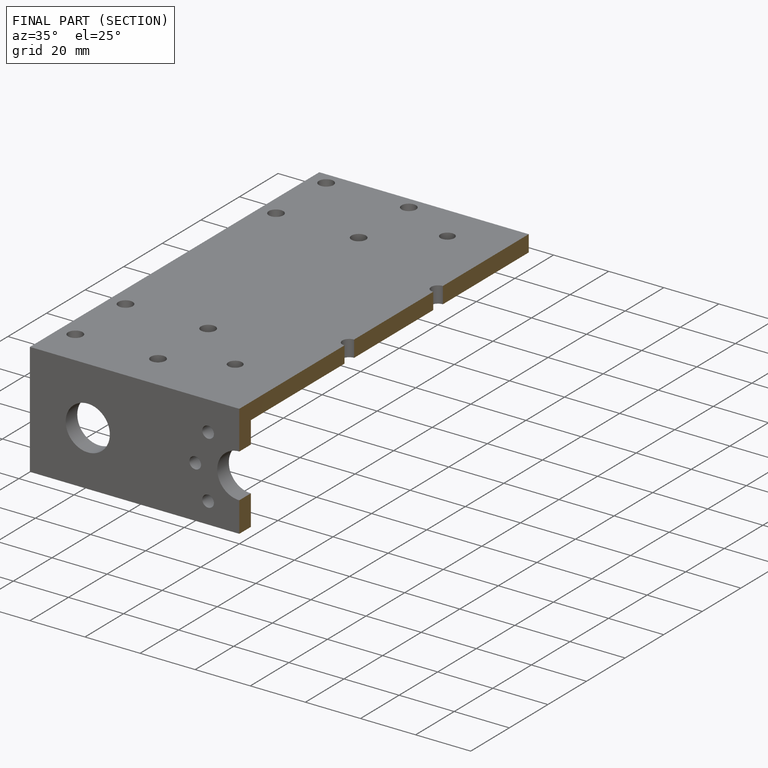
[diagram: finished part — half-section view (interior)]
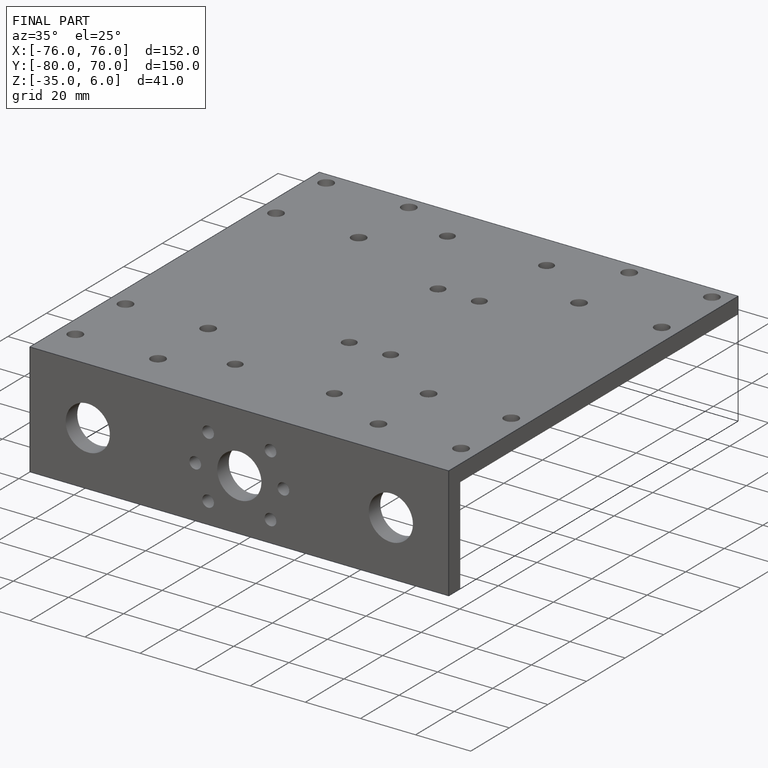
[diagram: finished part — iso view with bounding-box wireframe]
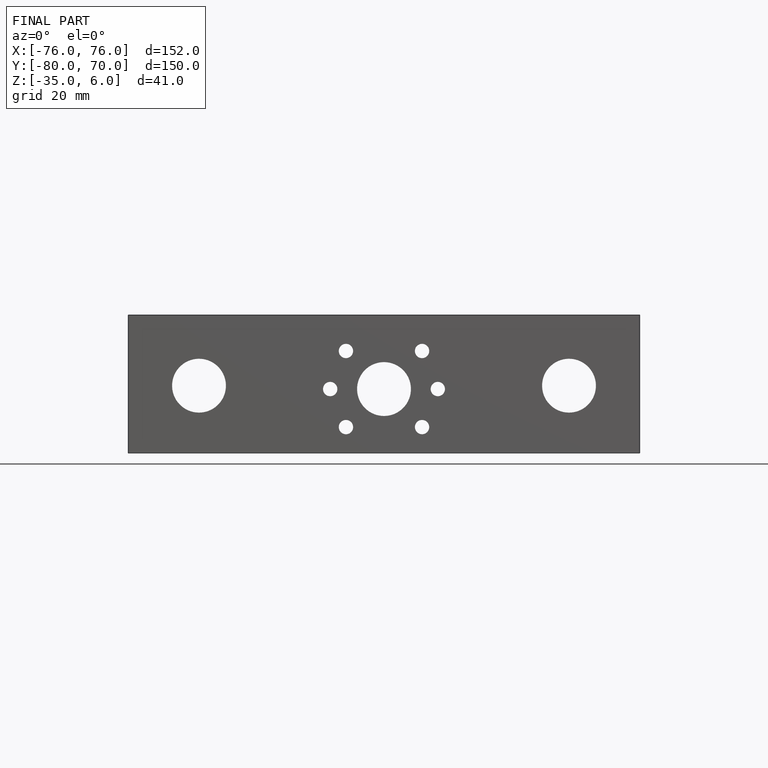
[diagram: finished part — front view with bounding-box wireframe]
